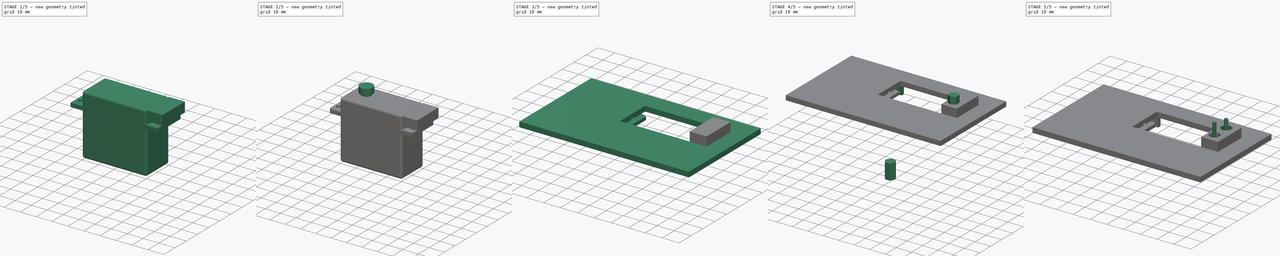
[diagram: build sequence overview — one tinted view per stage of 5, left to right]
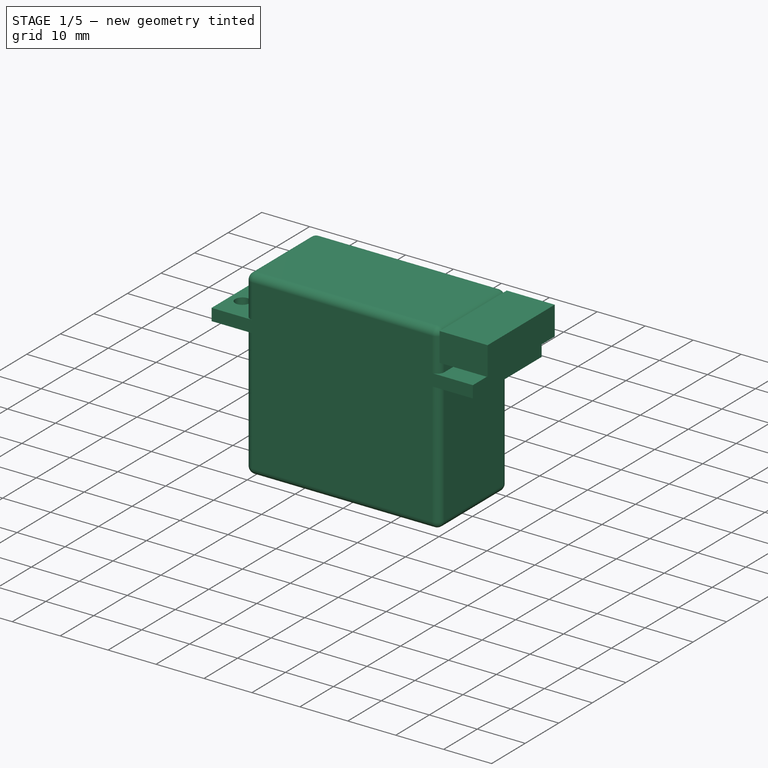
[diagram: stage 1 of 5 — iso view after this stage's code; geometry added in this stage tinted green]
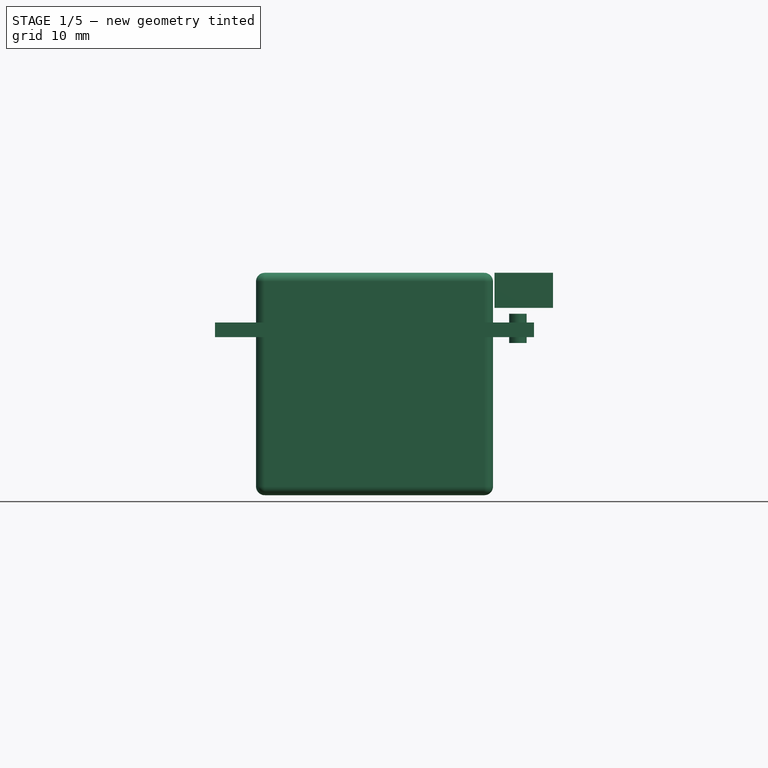
[diagram: stage 1 of 5 — front view after this stage's code; geometry added in this stage tinted green]
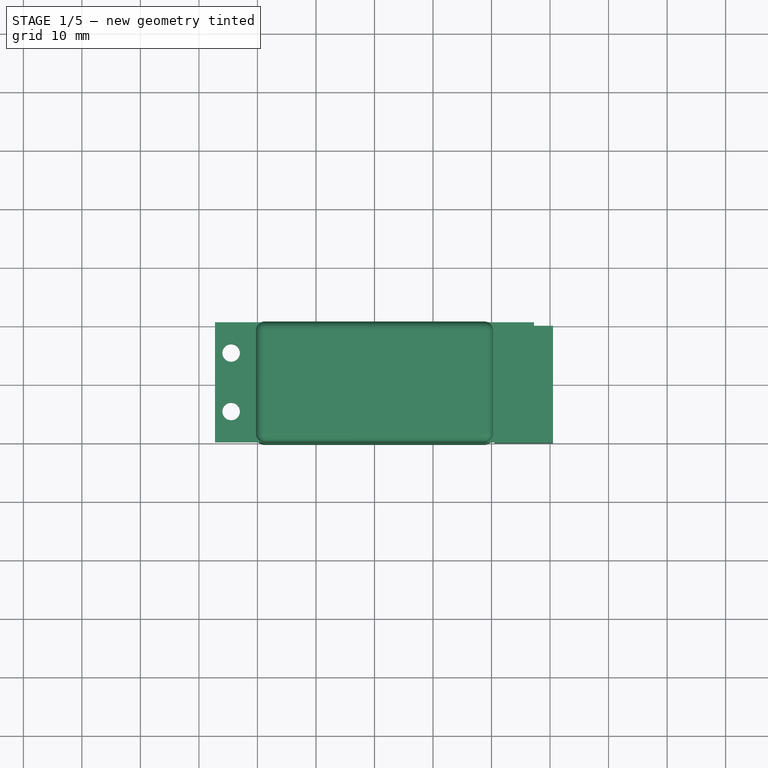
[diagram: stage 1 of 5 — top view after this stage's code; geometry added in this stage tinted green]
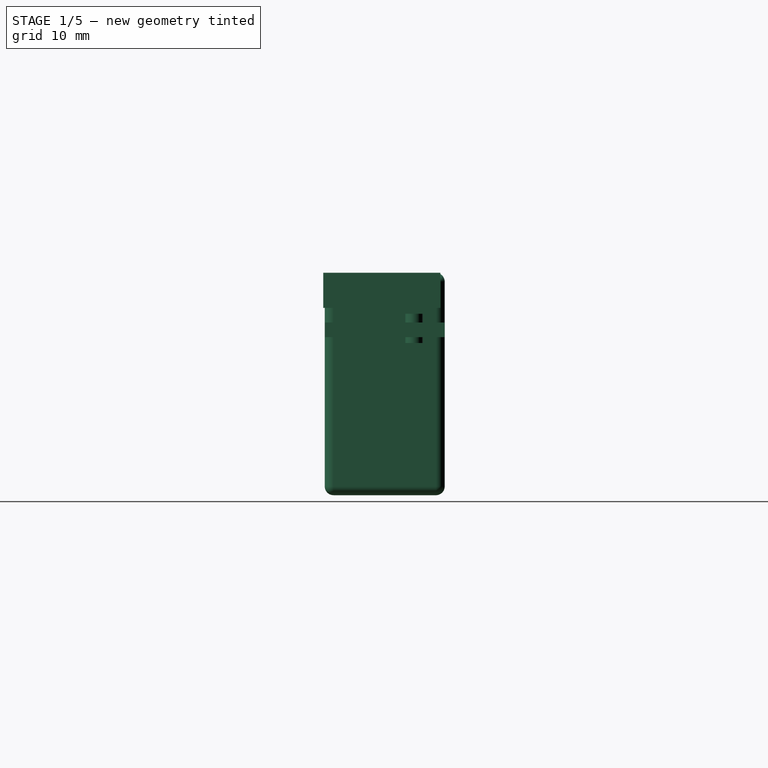
[diagram: stage 1 of 5 — right view after this stage's code; geometry added in this stage tinted green]
FCSTD DOCUMENT
Label: servo_mount
License: CC-BY 3.0
LicenseURL: http://creativecommons.org/licenses/by/3.0/
objects: Part::Box×12, Part::Cut×8, Part::Cylinder×7, Part::MultiFuse×6, Part::Fillet×5, Part::FeaturePython×3, Part::Extrusion×3, Part::Cone×2, Sketcher::SketchObject×1
note: 47 computed .brp shape members not serialized (recipe doc carries the construction recipe); baked Part::Feature solids carry a one-line shape summary decoded from their .brp

FEATURE [Part::Box] Box  label="ServoBody"
  Height = 38
  Length = 40.5
  Placement = pos=(-10.25,-10.25,0) rot=(0,0,1;0rad)
  Width = 20.5
FEATURE [Part::Box] Box001  label="servo_lugs"
  Height = 2.5
  Length = 54.5
  Placement = pos=(-17.25,-10.25,27) rot=(0,0,1;0rad)
  Width = 20.5
FEATURE [Part::Cylinder] Cylinder002  label="Screw_hole1"
  Angle = 360
  Height = 5
  Placement = pos=(-14.5,5,26) rot=(0,0,1;0rad)
  Radius = 1.5
FEATURE [Part::FeaturePython] Clone  label="Screw_hole2"  # Draft clone (typed FeaturePython)
  Objects = -> [Cylinder002]
  Placement = pos=(-14.5,-5,26) rot=(0,0,1;0rad)
  Scale = (1,1,1)
FEATURE [Part::FeaturePython] Clone001  label="Screw_hole3"  # Draft clone (typed FeaturePython)
  Objects = -> [Cylinder002]
  Placement = pos=(34.5,5,26) rot=(0,0,1;0rad)
  Scale = (1,1,1)
FEATURE [Part::Cut] Cut
  Base = -> Box001
  Tool = -> Cylinder002
FEATURE [Part::Cut] Cut001
  Base = -> Cut
  Tool = -> Clone
FEATURE [Part::Fillet] Fillet004  label="ServoBody001"
  Base = -> Box
  Edges = 12 edges r=1.5: [Edge1,Edge2,Edge3,Edge4,Edge5,Edge6,Edge7,Edge8,Edge9,Edge10,Edge11,Edge12]
FEATURE [Part::Box] Box005002002002  label="NutTrapBox"
  Height = 6
  Length = 10
  Placement = pos=(30.5,-10.5,32) rot=(0,0,1;0rad)
  Width = 20
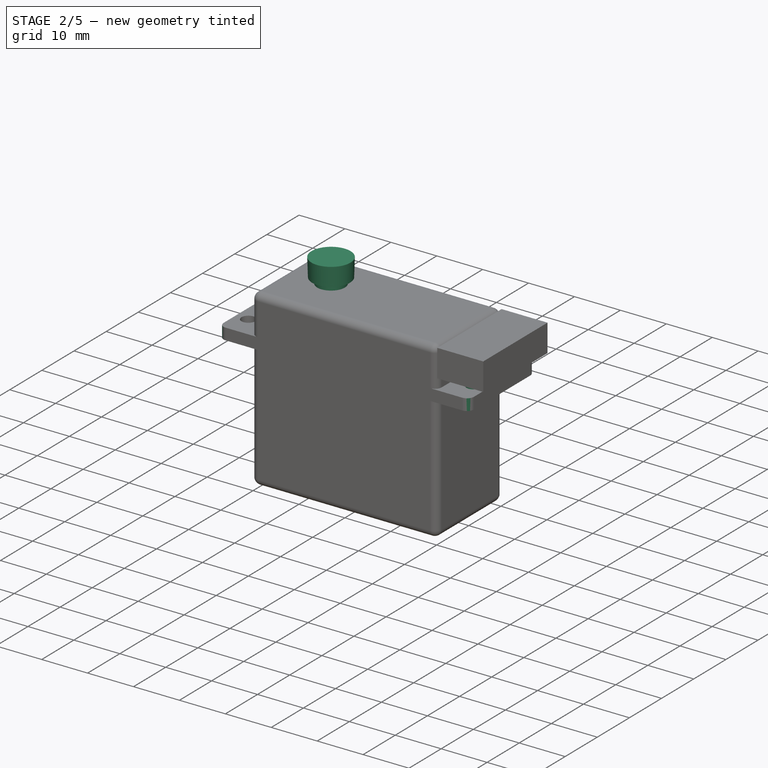
[diagram: stage 2 of 5 — iso view after this stage's code; geometry added in this stage tinted green]
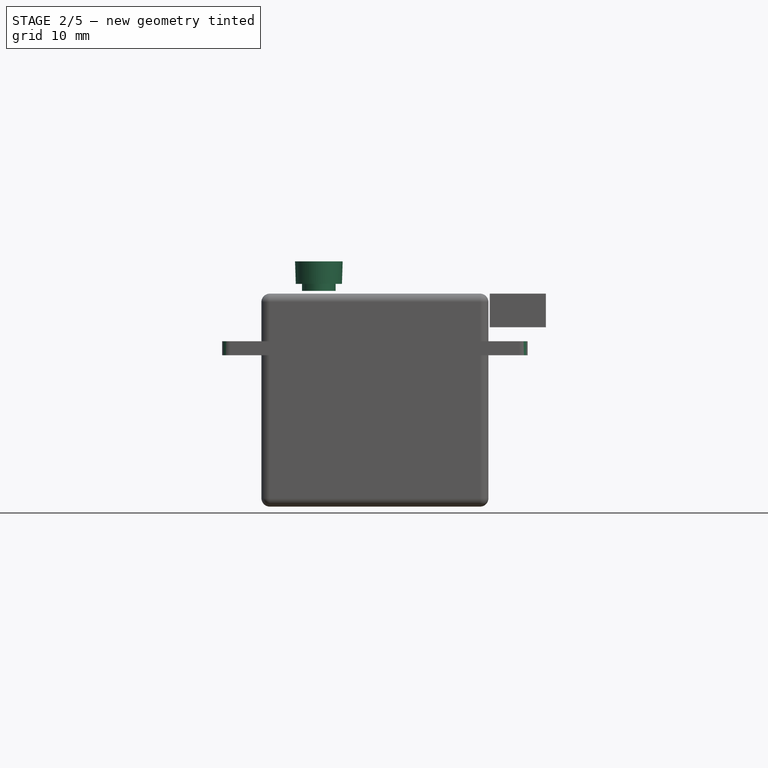
[diagram: stage 2 of 5 — front view after this stage's code; geometry added in this stage tinted green]
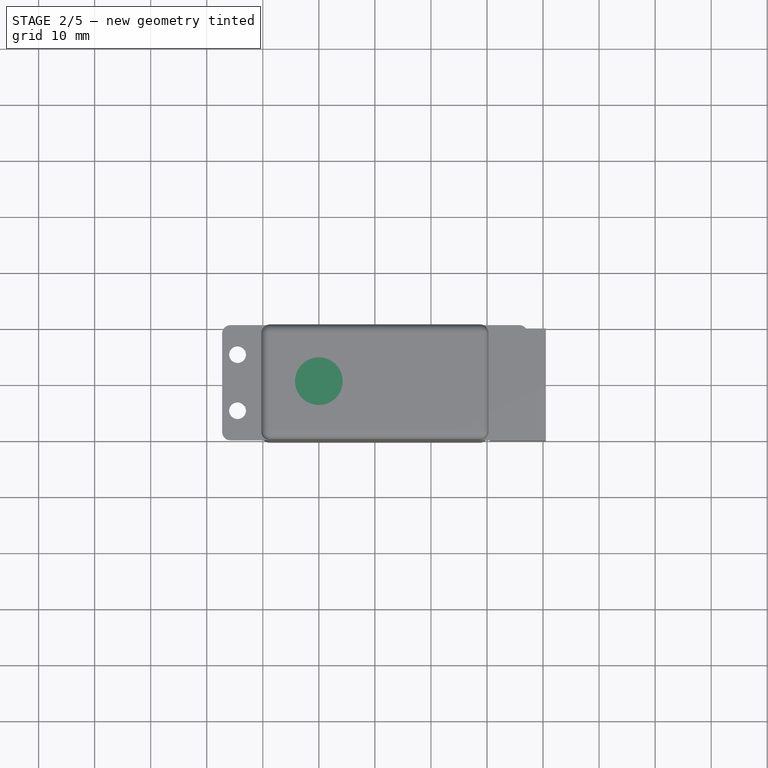
[diagram: stage 2 of 5 — top view after this stage's code; geometry added in this stage tinted green]
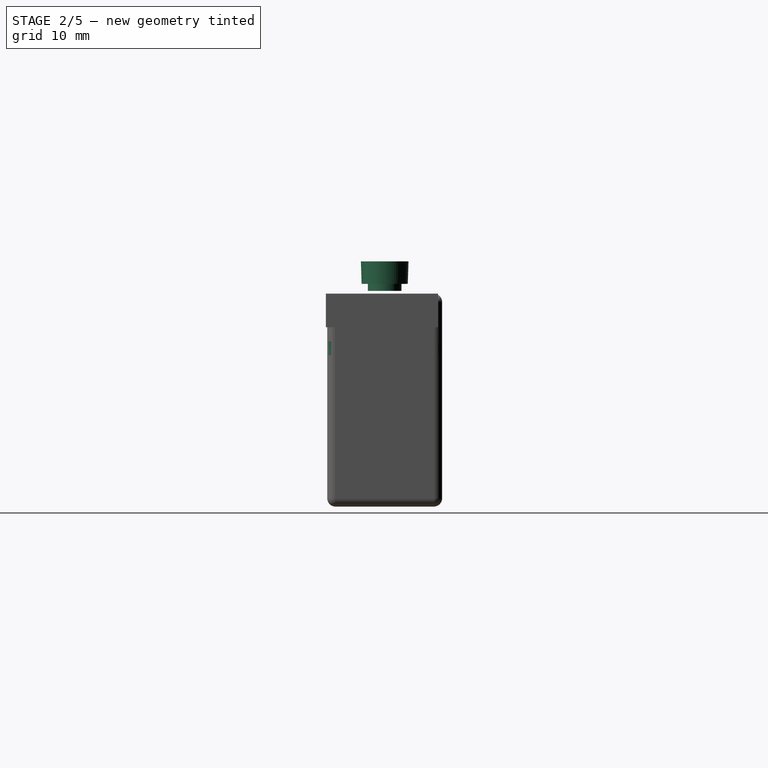
[diagram: stage 2 of 5 — right view after this stage's code; geometry added in this stage tinted green]
FEATURE [Part::Cone] Cone001
  Angle = 360
  Height = 4
  Placement = pos=(0,0,39.75) rot=(0,0,1;0rad)
  Radius1 = 4.12
  Radius2 = 4.25
FEATURE [Part::Cylinder] Cylinder001  label="shaft"
  Angle = 360
  Height = 4.5
  Placement = pos=(0,0,38.5) rot=(0,0,1;0rad)
  Radius = 3
FEATURE [Part::FeaturePython] Clone002  label="Screw_hole4"  # Draft clone (typed FeaturePython)
  Objects = -> [Clone001]
  Placement = pos=(34.5,-5,26) rot=(0,0,1;0rad)
  Scale = (1,1,1)
FEATURE [Part::Cut] Cut002
  Base = -> Cut001
  Tool = -> Clone001
FEATURE [Part::Cut] Cut003  label="ServoLugs"
  Base = -> Cut002
  Tool = -> Clone002
FEATURE [Part::Fillet] Fillet
  Base = -> Cut003
  Edges = 1 edges r=1.5: [Edge6]
FEATURE [Part::Fillet] Fillet001
  Base = -> Fillet
  Edges = 1 edges r=1.5: [Edge31]
FEATURE [Part::Fillet] Fillet002
  Base = -> Fillet001
  Edges = 1 edges r=1.5: [Edge24]
FEATURE [Part::Fillet] Fillet003  label="servo_lugs001"
  Base = -> Fillet002
  Edges = 1 edges r=1.5: [Edge24]
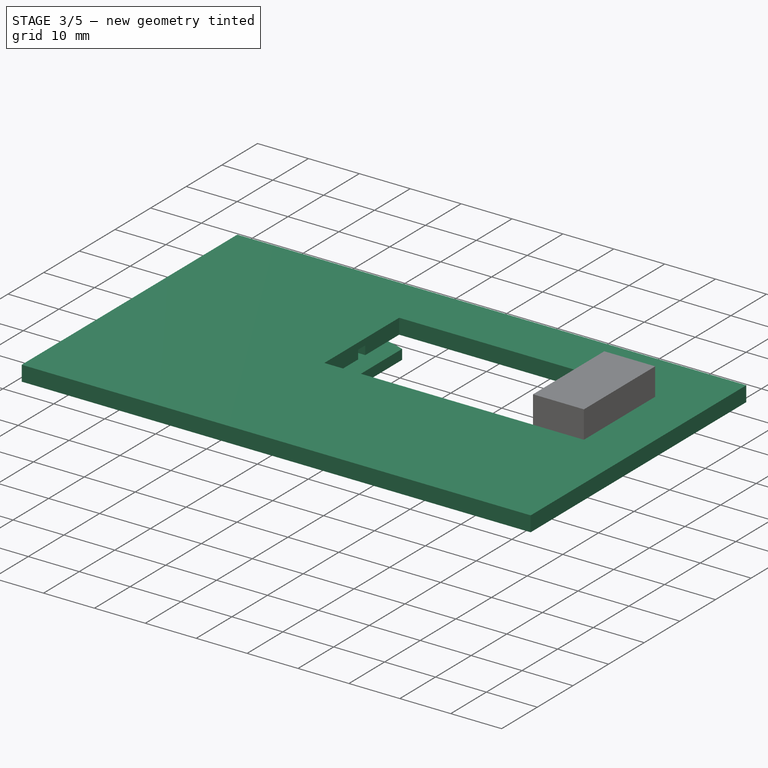
[diagram: stage 3 of 5 — iso view after this stage's code; geometry added in this stage tinted green]
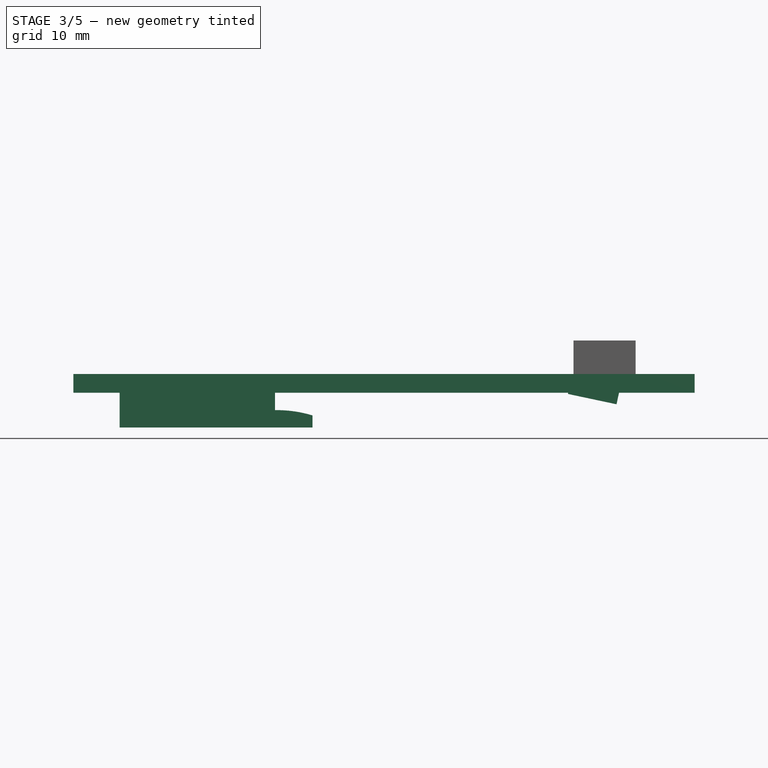
[diagram: stage 3 of 5 — front view after this stage's code; geometry added in this stage tinted green]
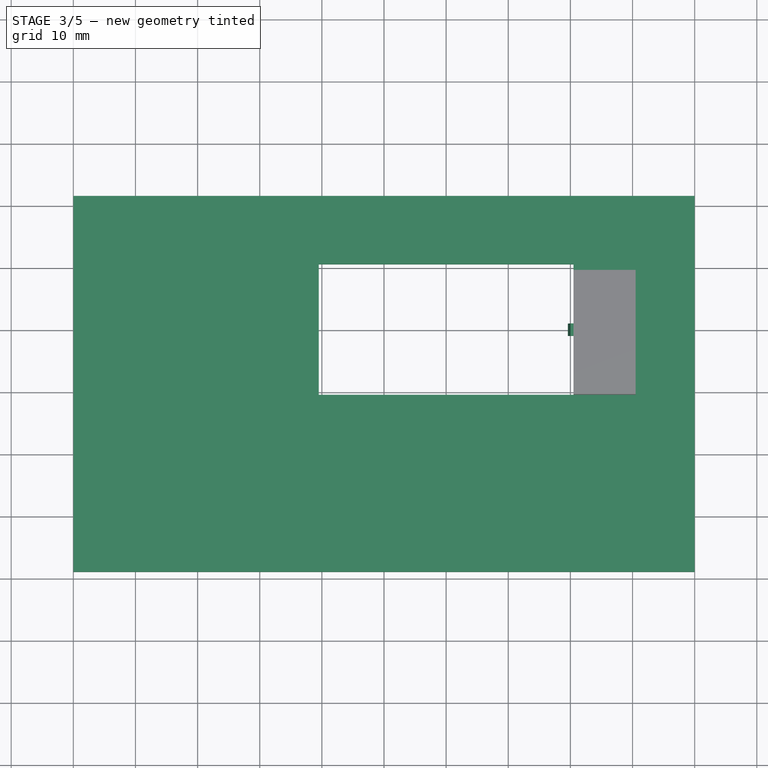
[diagram: stage 3 of 5 — top view after this stage's code; geometry added in this stage tinted green]
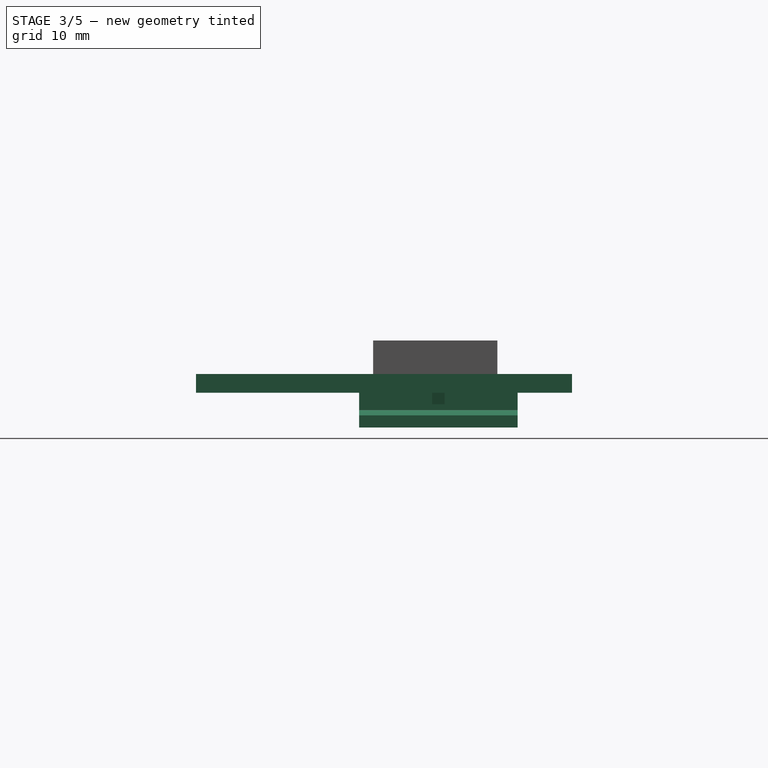
[diagram: stage 3 of 5 — right view after this stage's code; geometry added in this stage tinted green]
FEATURE [Part::Cylinder] Cylinder  label="ServoHorn"
  Angle = 360
  Height = 2.25
  Placement = pos=(0,0,43.5) rot=(0,0,1;0rad)
  Radius = 10.5
FEATURE [Part::Cone] Cone  label="ServoBodyCone"
  Angle = 360
  Height = 2
  Placement = pos=(0,0,37.5) rot=(0,0,1;0rad)
  Radius1 = 8
  Radius2 = 5.5
FEATURE [Part::MultiFuse] Fusion  label="Servo"
  Shapes = -> [Cylinder,Cone,Cone001,Cylinder001,Fillet003,Fillet004]
FEATURE [Part::Box] Box002  label="servo_mount_blank"
  Height = 3
  Length = 100
  Placement = pos=(-50,-39,24) rot=(0,0,1;0rad)
  Width = 60.5
FEATURE [Part::Box] Box003  label="cutout"
  Height = 10
  Length = 41
  Placement = pos=(-10.5,-10.5,21) rot=(0,0,1;0rad)
  Width = 21
FEATURE [Part::Cut] Cut004  label="servo_mount_blank001"
  Base = -> Box002
  Placement = pos=(0,0,5.6) rot=(0,0,1;0rad)
  Tool = -> Box003
FEATURE [Sketcher::SketchObject] Sketch  label="servo_mount_profile_sketch"
  ExternalGeometry = -> [Fusion]
  Placement = pos=(0,-10.25,0) rot=(1,0,0;1.5708rad)
  Support = -> Fusion [Face25]
  sketch-geometry (9):
    g0: LineSegment [constr] StartX=-8.75 StartY=27 StartZ=0 EndX=-17.25 EndY=27 EndZ=0
    g1: ArcOfCircle CenterX=-17.25 CenterY=7.01553 CenterZ=0 NormalX=0 NormalY=0 NormalZ=1 Radius=19.7845 StartAngle=1.27591 EndAngle=1.5708
    g2: LineSegment StartX=-11.5 StartY=25.946 StartZ=0 EndX=-11.5 EndY=24 EndZ=0
    g3: LineSegment StartX=-11.5 StartY=24 StartZ=0 EndX=-42.55 EndY=24 EndZ=0
    g4: LineSegment StartX=-17.25 StartY=26.8 StartZ=0 EndX=-17.55 EndY=26.8 EndZ=0
    g5: LineSegment StartX=-17.55 StartY=26.8 StartZ=0 EndX=-17.55 EndY=30.3 EndZ=0
    g6: LineSegment StartX=-17.55 StartY=30.3 StartZ=0 EndX=-42.55 EndY=30.3 EndZ=0
    g7: LineSegment StartX=-42.55 StartY=30.3 StartZ=0 EndX=-42.55 EndY=24 EndZ=0
    g8: ArcOfCircle [constr] CenterX=-17.25 CenterY=27 CenterZ=0 NormalX=0 NormalY=0 NormalZ=1 Radius=48.8196 StartAngle=0.0553339 EndAngle=0.226314
  constraints (27):
    c: Horizontal(g0)
    c: DistanceX(g0,g0) = 8.5
    c: DistanceX(g1,g0) = 0
    c: DistanceX(g1,g0) = 0
    c: Coincident(g0,g-3)
    c: DistanceY(g1,g0) = 0.2
    c: DistanceY(g1) = 7.01553
    c: Vertical(g2)
    c: Coincident(g2,g1)
    c: Horizontal(g3)
    c: Coincident(g3,g2)
    c: DistanceY(g3,g0) = 3
    c: DistanceX(g5,g0) = 0.3
    c: Coincident(g4,g1)
    c: Horizontal(g4)
    c: Coincident(g5,g4)
    c: Vertical(g5)
    c: Horizontal(g6)
    c: Coincident(g7,g3)
    c: Coincident(g7,g6)
    c: Vertical(g7)
    c: DistanceX(g5,g6) = -25
    c: Coincident(g8,g0)
    c: DistanceY(g8) = 37.9545
    c: DistanceX(g2,g0) = 2.75
    c: Coincident(g5,g6)
    c: DistanceY(g5,g4) = -3.5
FEATURE [Part::Box] Box005  label="Lug_fillet01"
  Height = 2
  Length = 8
  Placement = pos=(-17.5,-1,27.8) rot=(0,-1,0;0.209439rad)
  Width = 2
FEATURE [Part::Box] Box005001  label="Lug_fillet002"
  Height = 2
  Length = 8
  Placement = pos=(29.6,-1,29.4) rot=(0,1,0;0.209439rad)
  Width = 2
FEATURE [Part::Cut] Cut005  label="servo_mount_blank_02"
  Base = -> Cut004
  Tool = -> Box005
FEATURE [Part::Extrusion] Extrude001  label="servo_mount_slot"
  Base = -> Sketch
  Dir = (0,25.5,0)
  Placement = pos=(0,-2.5,0) rot=(0,0,1;0rad)
  Solid = true
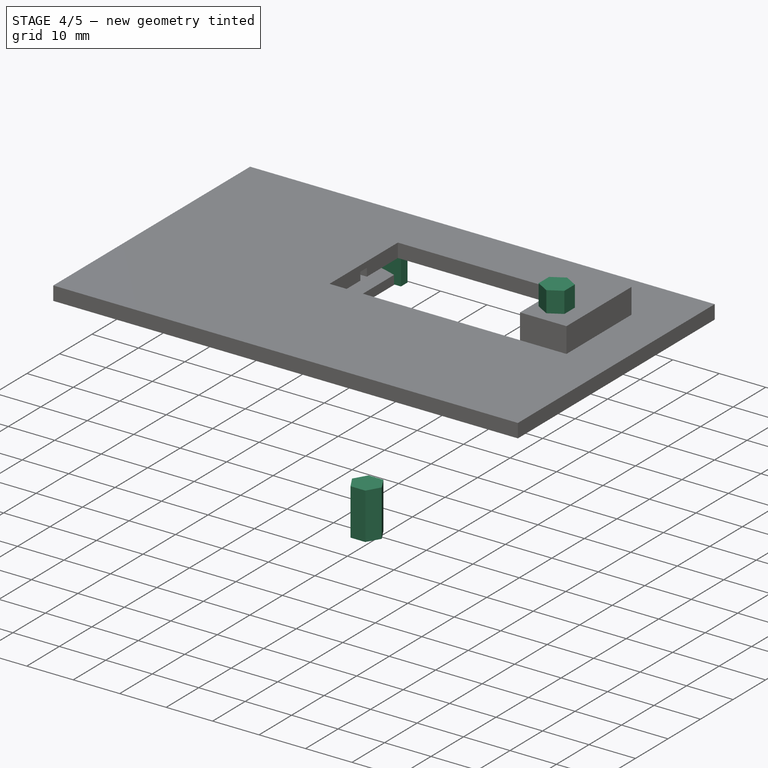
[diagram: stage 4 of 5 — iso view after this stage's code; geometry added in this stage tinted green]
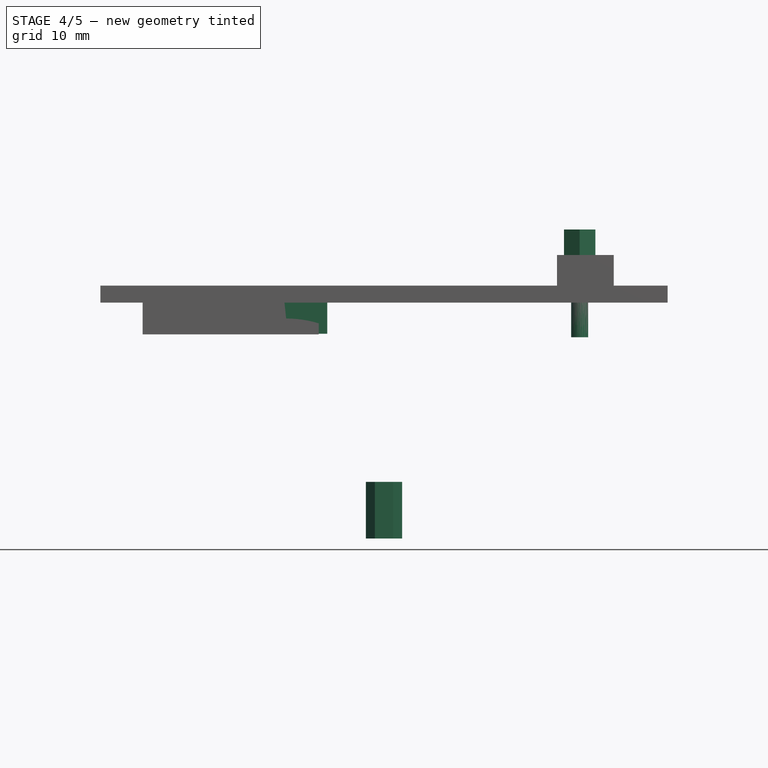
[diagram: stage 4 of 5 — front view after this stage's code; geometry added in this stage tinted green]
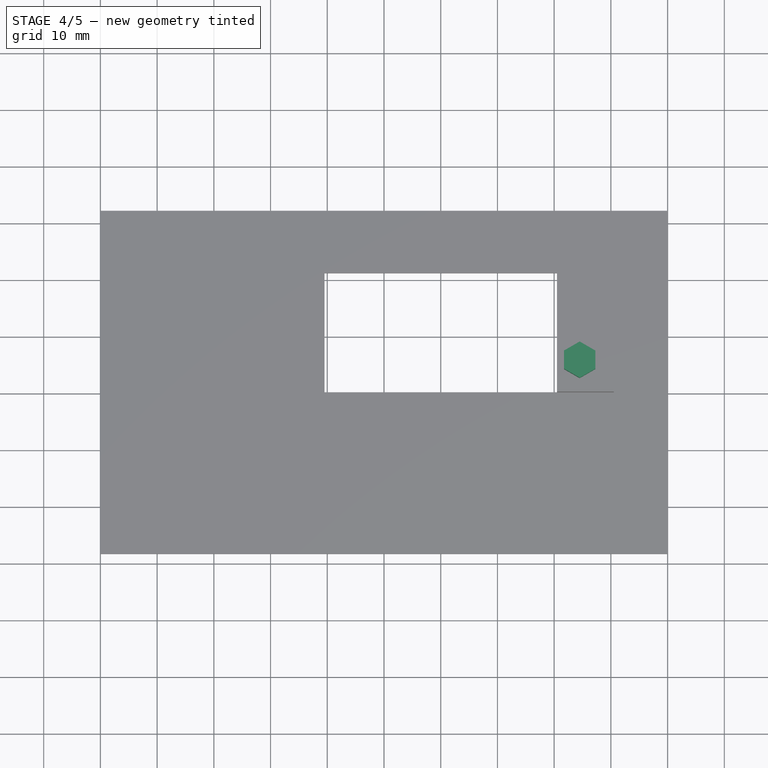
[diagram: stage 4 of 5 — top view after this stage's code; geometry added in this stage tinted green]
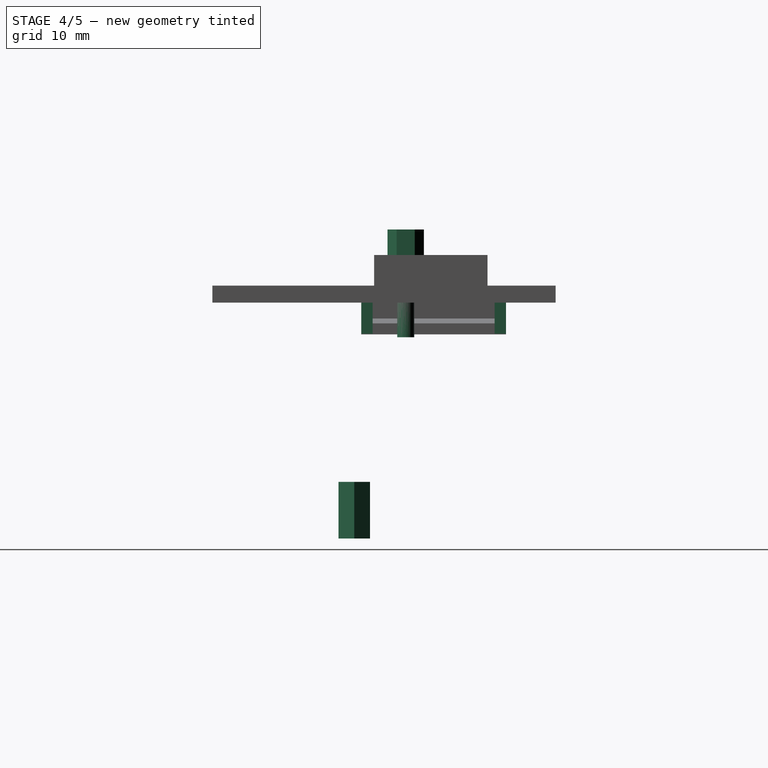
[diagram: stage 4 of 5 — right view after this stage's code; geometry added in this stage tinted green]
FEATURE [Part::Box] Box005002  label="mount_lug_side_cheek01"
  Height = 7.5
  Length = 8
  Placement = pos=(-18,-12.75,24.1) rot=(0,0,1;0rad)
  Width = 2
FEATURE [Part::Box] Box005002001  label="mount_lug_side_cheek002"
  Height = 7.5
  Length = 8
  Placement = pos=(-18,10.75,24.1) rot=(0,0,1;0rad)
  Width = 2
FEATURE [Part::Cut] Cut006  label="servo_mount_plate"
  Base = -> Cut005
  Tool = -> Box005001
FEATURE [Part::MultiFuse] Fusion002  label="ServoMount01"
  Shapes = -> [Extrude001,Box005002,Box005002001,Cut006]
FEATURE [Part::Extrusion] Extrude001001  label="M3NutTrapB"
  Base = -> Sketch
  Dir = (0,0,10)
  Placement = pos=(0,-14,-12) rot=(0,0,1;0rad)
  Solid = true
FEATURE [Part::Extrusion] Extrude001001001  label="M3NutTrapB001"
  Base = -> Sketch
  Dir = (0,0,10)
  Placement = pos=(0,-14,-12) rot=(0,0,1;0rad)
  Solid = true
FEATURE [Part::Cylinder] Cylinder005001001  label="M3NutTrapCylB001"
  Angle = 360
  Height = 10
  Placement = pos=(0,-14,-3) rot=(0,0,1;0rad)
  Radius = 1.5
FEATURE [Part::MultiFuse] Fusion002001001  label="NutTrapCutoutB"
  Placement = pos=(41.5,7.2,30.5) rot=(0.258819,0.965926,0;3.14159rad)
  Shapes = -> [Cylinder005001001,Extrude001001001]
FEATURE [Part::MultiFuse] Fusion002001003
  Shapes = -> [Fusion002,Box005002002002]
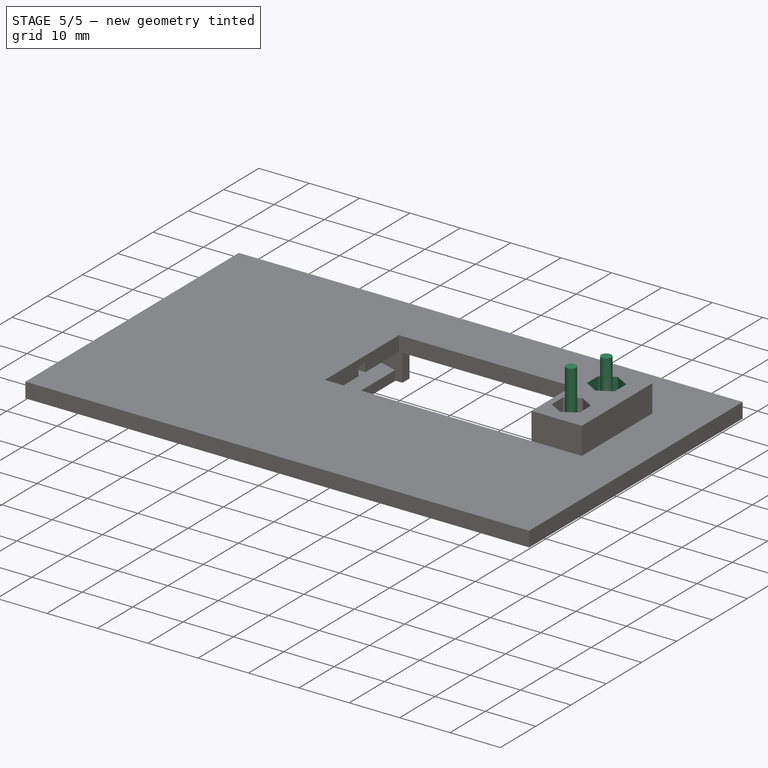
[diagram: stage 5 of 5 — iso view after this stage's code; geometry added in this stage tinted green]
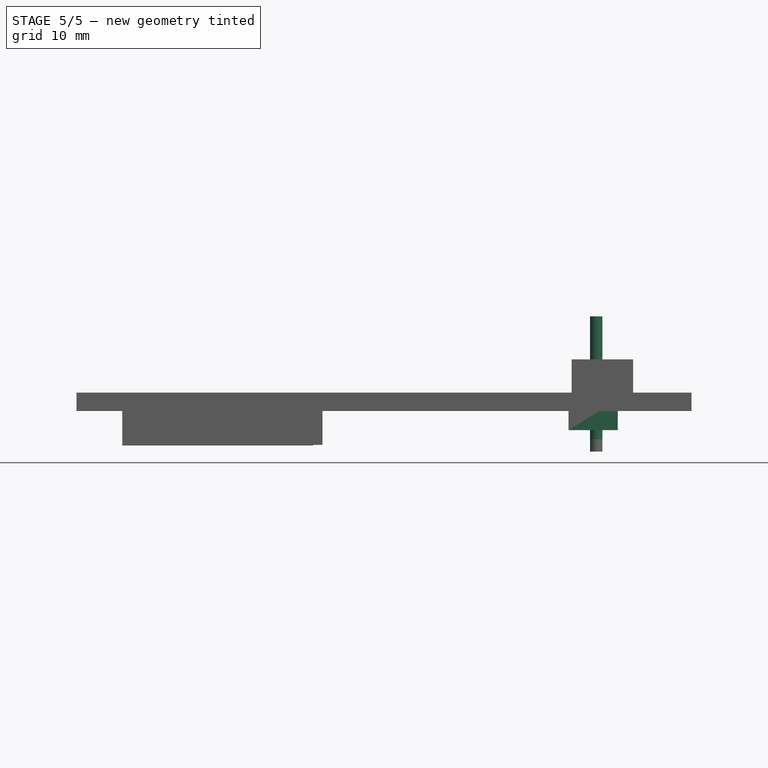
[diagram: stage 5 of 5 — front view after this stage's code; geometry added in this stage tinted green]
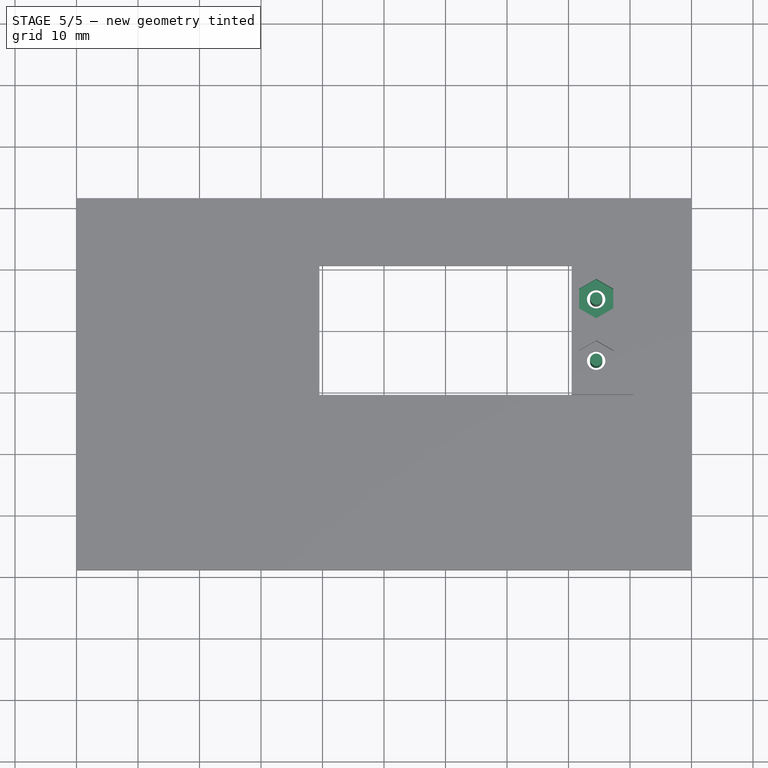
[diagram: stage 5 of 5 — top view after this stage's code; geometry added in this stage tinted green]
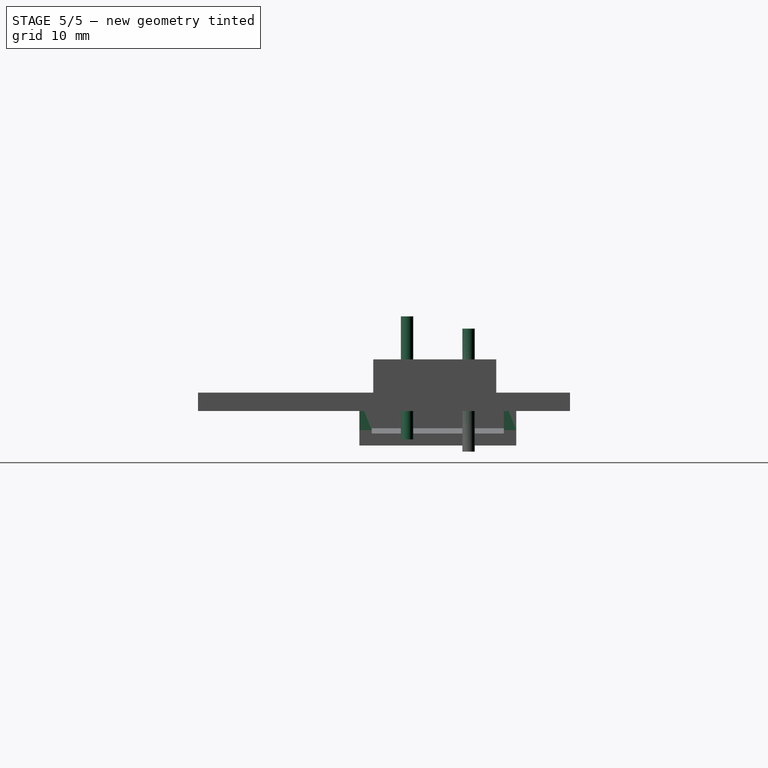
[diagram: stage 5 of 5 — right view after this stage's code; geometry added in this stage tinted green]
FEATURE [Part::Cylinder] Cylinder005  label="screwhole3"
  Angle = 360
  Height = 20
  Placement = pos=(34.5,5,23) rot=(0,0,1;0rad)
  Radius = 1
FEATURE [Part::Cylinder] Cylinder006  label="screwhole4"
  Angle = 360
  Height = 20
  Placement = pos=(34.5,-5,25) rot=(0,0,1;0rad)
  Radius = 1
FEATURE [Part::Box] Box004  label="screwhole_joiner"
  Height = 10
  Length = 60
  Placement = pos=(-20,-10,39) rot=(0,0,1;0rad)
  Width = 20
FEATURE [Part::Box] Box005002002  label="mount_lug_side_cheek003"
  Height = 5
  Length = 8
  Placement = pos=(30,-12.75,26.5) rot=(0,0,1;0rad)
  Width = 2
FEATURE [Part::Box] Box005002002001  label="mount_lug_side_cheek004"
  Height = 5
  Length = 8
  Placement = pos=(30,10.75,26.5) rot=(0,0,1;0rad)
  Width = 2
FEATURE [Part::Cylinder] Cylinder005001  label="M3NutTrapCylB"
  Angle = 360
  Height = 10
  Placement = pos=(0,-14,-3) rot=(0,0,1;0rad)
  Radius = 1.5
FEATURE [Part::MultiFuse] Fusion002001  label="NutTrapCutoutA"
  Placement = pos=(41.5,17.2,30.5) rot=(0.258819,0.965926,0;3.14159rad)
  Shapes = -> [Cylinder005001,Extrude001001]
FEATURE [Part::MultiFuse] Fusion002001002  label="nut_trap_holes_subtract"
  Shapes = -> [Box004,Fusion002001001,Fusion002001]
FEATURE [Part::Cut] Cut007  label="ServoMount"
  Base = -> Fusion002001003
  Tool = -> Fusion002001002
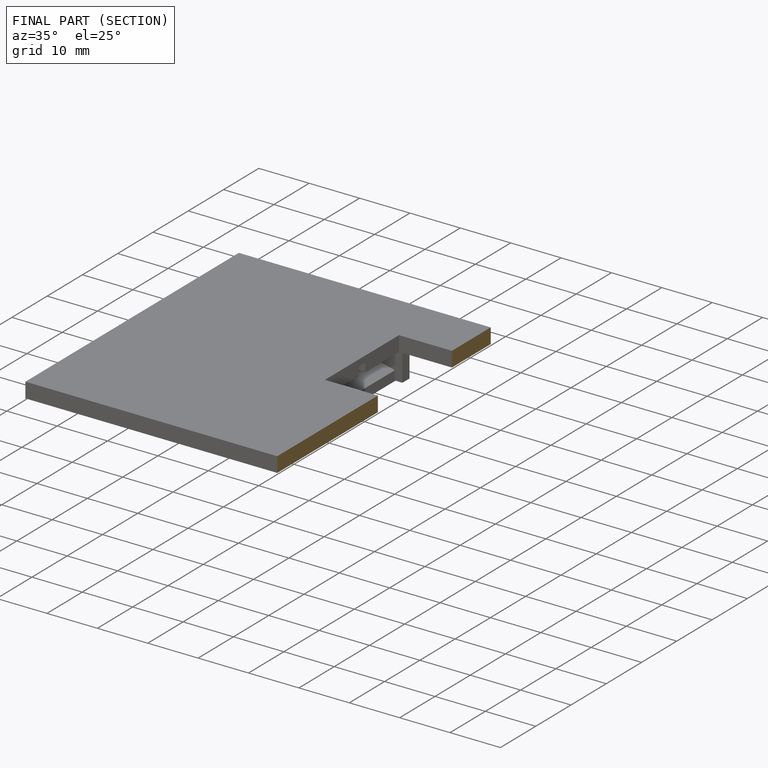
[diagram: finished part — half-section view (interior)]
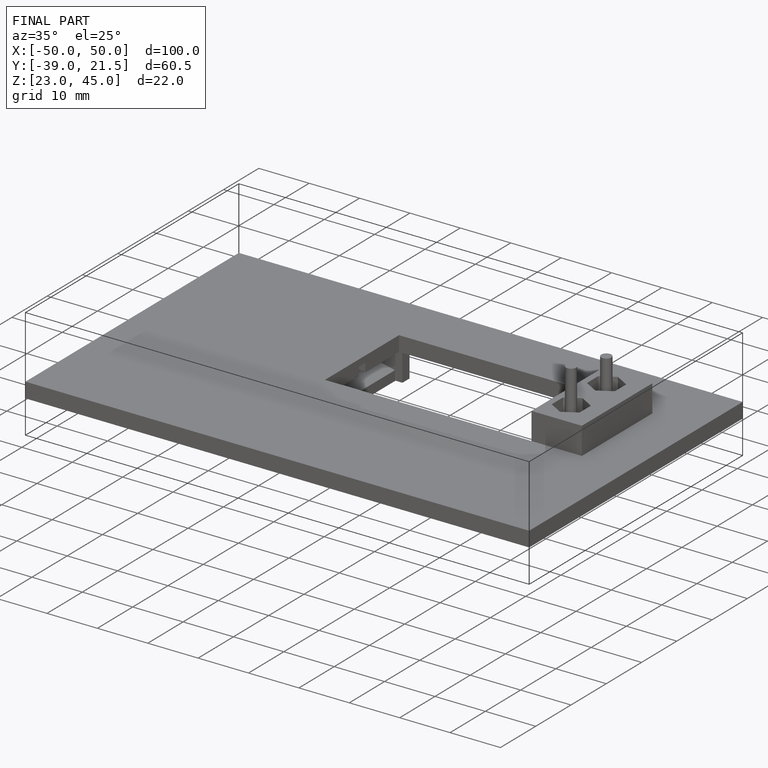
[diagram: finished part — iso view with bounding-box wireframe]
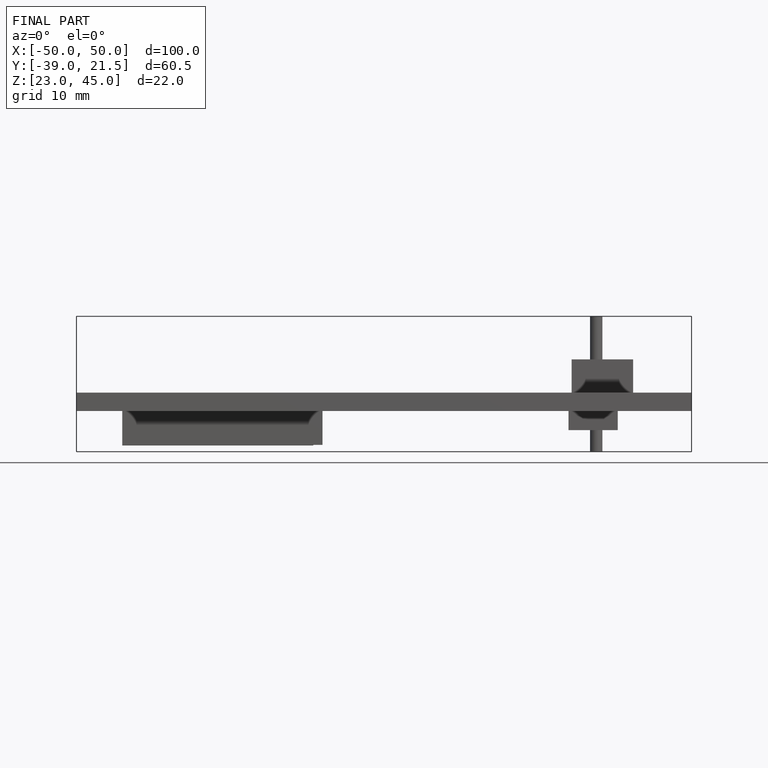
[diagram: finished part — front view with bounding-box wireframe]
